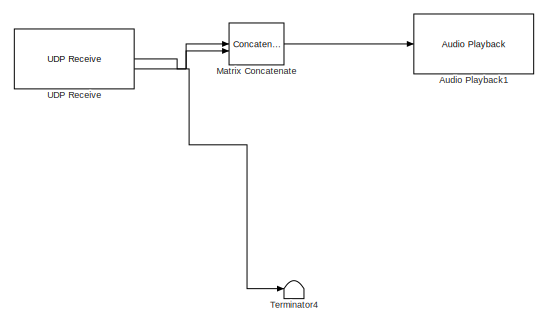
[diagram: root canvas - part 1/2, top left region]
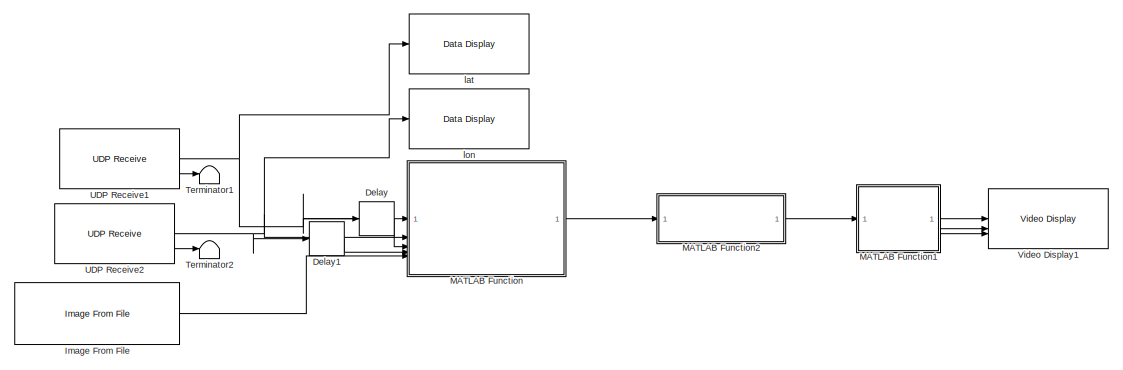
[diagram: root canvas - part 2/2, middle right region]
MODEL slx_20fba507ff69
KIND model
CONFIG AbsTol = auto
CONFIG EnableMultiTasking = off
CONFIG FixedStep = auto
CONFIG MaxStep = auto
CONFIG MinStep = auto
CONFIG RelTol = 1e-3
CONFIG SampleTimeConstraint = Unconstrained
CONFIG SolverName = FixedStepAuto
CONFIG StartTime = 0.0
CONFIG StopTime = inf
BLOCK [Reference] Audio Playback1  REF=androidaudiovideolib/Audio Playback
  SourceBlock = androidaudiovideolib/Audio Playback
  SourceType = codertarget.internal.androidAudioPlayback
BLOCK [Delay] Delay
  DelayLength = 1
  InputPortMap = u0
BLOCK [Delay] Delay1
  DelayLength = 1
  InputPortMap = u0
BLOCK [Reference] Image From File  REF=visionsources/Image From File
  SourceBlock = visionsources/Image From File
  SourceType = Image From File
  Tag = vipblks_nd
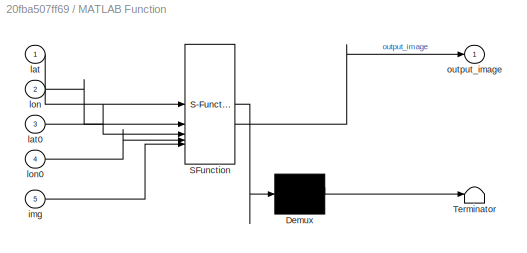
BLOCK [SubSystem] MATLAB Function
  ErrorFcn = Stateflow.Translate.translate
  LibrarySourceBlock = simulink/User-Defined\nFunctions/MATLAB Function
  PermitHierarchicalResolution = ExplicitOnly
  SFBlockType = MATLAB Function
  TreatAsAtomicUnit = on
BLOCK [Demux] MATLAB Function/ Demux 
  Outputs = 1
BLOCK [S-Function] MATLAB Function/ SFunction 
  EnableBusSupport = on
  FunctionName = sf_sfun
  PortCounts = [5 2]
  SFcnIsStateOwnerBlock = off
  SFunctionDeploymentMode = off
  Tag = Stateflow S-Function 2
BLOCK [Terminator] MATLAB Function/ Terminator 
BLOCK [Inport] MATLAB Function/img
  Port = 5
BLOCK [Inport] MATLAB Function/lat
BLOCK [Inport] MATLAB Function/lat0
  Port = 3
BLOCK [Inport] MATLAB Function/lon
  Port = 2
BLOCK [Inport] MATLAB Function/lon0
  Port = 4
BLOCK [Outport] MATLAB Function/output_image
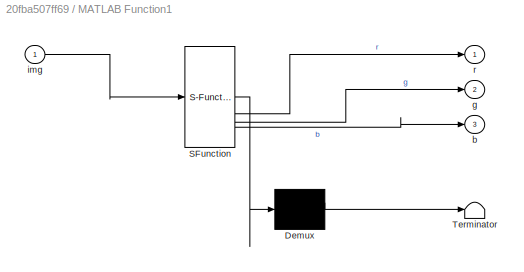
BLOCK [SubSystem] MATLAB Function1
  ErrorFcn = Stateflow.Translate.translate
  LibrarySourceBlock = simulink/User-Defined\nFunctions/MATLAB Function
  PermitHierarchicalResolution = ExplicitOnly
  SFBlockType = MATLAB Function
  TreatAsAtomicUnit = on
BLOCK [Demux] MATLAB Function1/ Demux 
  Outputs = 1
BLOCK [S-Function] MATLAB Function1/ SFunction 
  EnableBusSupport = on
  FunctionName = sf_sfun
  PortCounts = [1 4]
  SFcnIsStateOwnerBlock = off
  SFunctionDeploymentMode = off
  Tag = Stateflow S-Function 1
BLOCK [Terminator] MATLAB Function1/ Terminator 
BLOCK [Outport] MATLAB Function1/b
  Port = 3
BLOCK [Outport] MATLAB Function1/g
  Port = 2
BLOCK [Inport] MATLAB Function1/img
BLOCK [Outport] MATLAB Function1/r
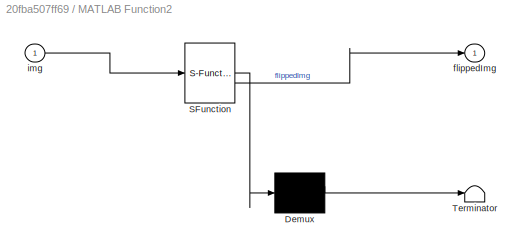
BLOCK [SubSystem] MATLAB Function2
  ErrorFcn = Stateflow.Translate.translate
  LibrarySourceBlock = simulink/User-Defined\nFunctions/MATLAB Function
  PermitHierarchicalResolution = ExplicitOnly
  SFBlockType = MATLAB Function
  TreatAsAtomicUnit = on
BLOCK [Demux] MATLAB Function2/ Demux 
  Outputs = 1
BLOCK [S-Function] MATLAB Function2/ SFunction 
  EnableBusSupport = on
  FunctionName = sf_sfun
  PortCounts = [1 2]
  SFcnIsStateOwnerBlock = off
  SFunctionDeploymentMode = off
  Tag = Stateflow S-Function 3
BLOCK [Terminator] MATLAB Function2/ Terminator 
BLOCK [Outport] MATLAB Function2/flippedImg
BLOCK [Inport] MATLAB Function2/img
BLOCK [Concatenate] Matrix Concatenate
  ConcatenateDimension = 2
  Mode = Multidimensional array
BLOCK [Terminator] Terminator1
BLOCK [Terminator] Terminator2
BLOCK [Terminator] Terminator4
BLOCK [Reference] UDP Receive  REF=androidcommunicationlib/UDP Receive
  SourceBlock = androidcommunicationlib/UDP Receive
  SourceType = UDP Receive
BLOCK [Reference] UDP Receive1  REF=androidcommunicationlib/UDP Receive
  SourceBlock = androidcommunicationlib/UDP Receive
  SourceType = UDP Receive
BLOCK [Reference] UDP Receive2  REF=androidcommunicationlib/UDP Receive
  SourceBlock = androidcommunicationlib/UDP Receive
  SourceType = UDP Receive
BLOCK [Reference] Video Display1  REF=androidaudiovideolib/Video Display
  SourceBlock = androidaudiovideolib/Video Display
  SourceType = codertarget.internal.androidVideoDisplay
BLOCK [Reference] lat  REF=androiduilib/Data Display
  SourceBlock = androiduilib/Data Display
  SourceType = codertarget.internal.androidDataDisplay
BLOCK [Reference] lon  REF=androiduilib/Data Display
  SourceBlock = androiduilib/Data Display
  SourceType = codertarget.internal.androidDataDisplay
LINE Delay1:1 -> MATLAB Function:4
LINE Delay:1 -> MATLAB Function:3
LINE Image From File:1 -> MATLAB Function:5
LINE MATLAB Function1:1 -> Video Display1:1
LINE MATLAB Function1:2 -> Video Display1:2
LINE MATLAB Function1:3 -> Video Display1:3
LINE MATLAB Function2:1 -> MATLAB Function1:1
LINE MATLAB Function:1 -> MATLAB Function2:1
LINE Matrix Concatenate:1 -> Audio Playback1:1
NET UDP Receive1:1 -> Delay:1, MATLAB Function:1, lat:1
LINE UDP Receive1:2 -> Terminator1:1
NET UDP Receive2:1 -> Delay1:1, MATLAB Function:2, lon:1
LINE UDP Receive2:2 -> Terminator2:1
NET UDP Receive:1 -> Matrix Concatenate:1, Matrix Concatenate:2
LINE UDP Receive:2 -> Terminator4:1
note: NET lines group one-source signal fan-out (src -> all destinations, sorted); 1:1 wires keep LINE
CHART MATLAB Function1 states=1 transitions=1
  STATE_LABEL 'eML_blk_kernel()'
  STATE_LABEL 'SCRIPT:\nfunction [r,g,b] = fcn(img)\n    r = img(:,:,1);\n    g = img(:,:,2);\n    b = img(:,:,3);\nend\n'
CHART MATLAB Function states=1 transitions=1
  STATE_LABEL 'eML_blk_kernel()'
  STATE_LABEL 'SCRIPT:\nfunction output_image  = image_mapping(lat,lon,lat0,lon0,img)\n    map_width = 883;\n    map_height = 675;\n    if(lat == 0)\n        lat = lat0;\n    end\n    if(lon == 0)\n        lon = lon0;\n    end\n    X = [83, 620, 640, 80, 441];\n    Lx = [23.211144, 23.211170, 23.209616, 23.209530, 23.209997];\n    Y = [70, 61, 427, 444, 337];\n    Ly = [72.6833273, 72.685835, 72.685929, 72.683318, 72.685008]...<+2539ch>'
CHART MATLAB Function2 states=1 transitions=1
  STATE_LABEL 'eML_blk_kernel()'
  STATE_LABEL 'SCRIPT:\nfunction flippedImg = flip(img)\n    flippedImg = img(:, end:-1:1, :);\nend\n'
CHART  states=0 transitions=0
CHART  states=0 transitions=0
CHART  states=0 transitions=0
